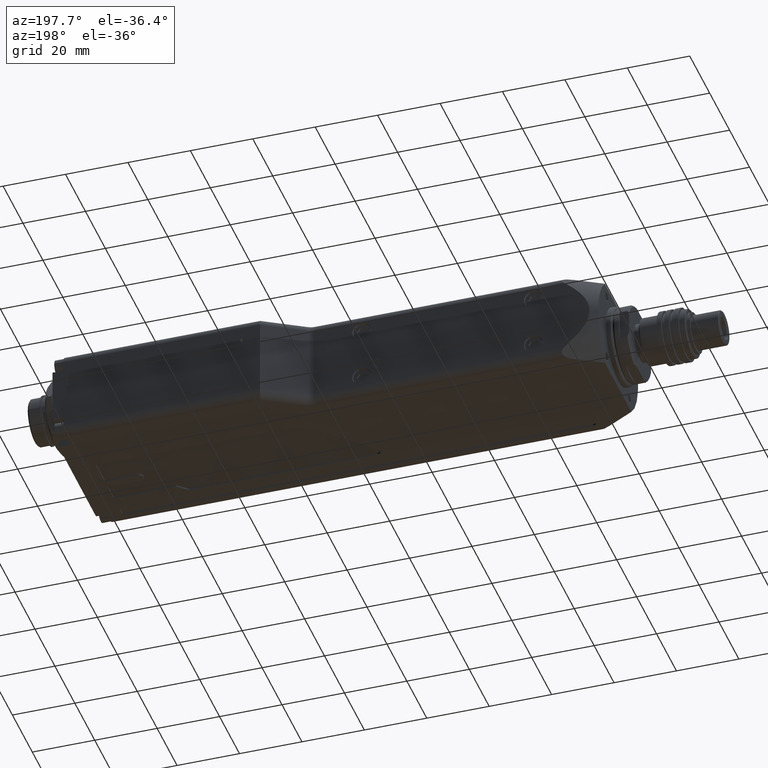
[diagram: clean part render]
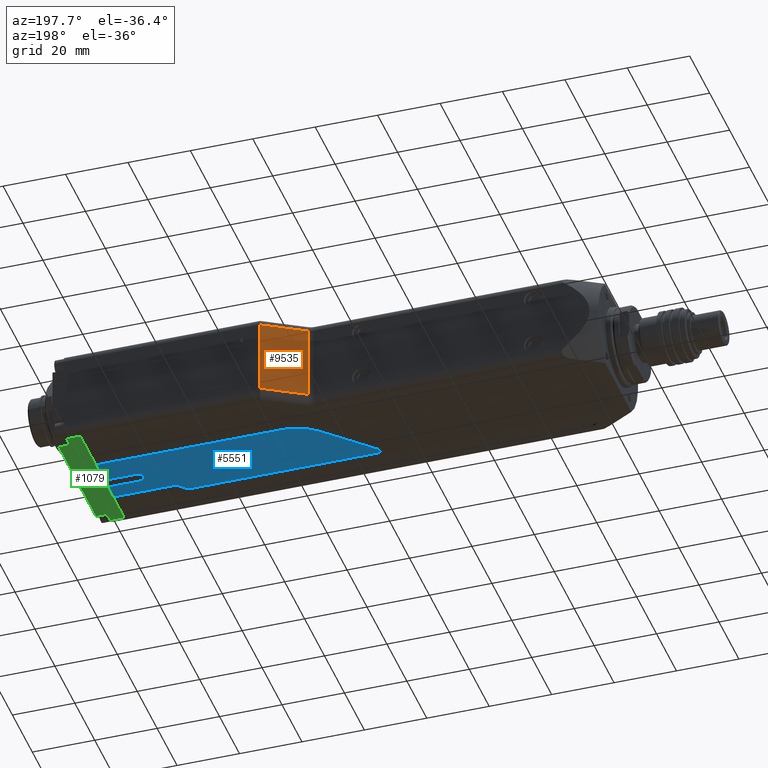
[diagram: same view with three faces highlighted in distinct colors, each labeled with its STEP entity id]
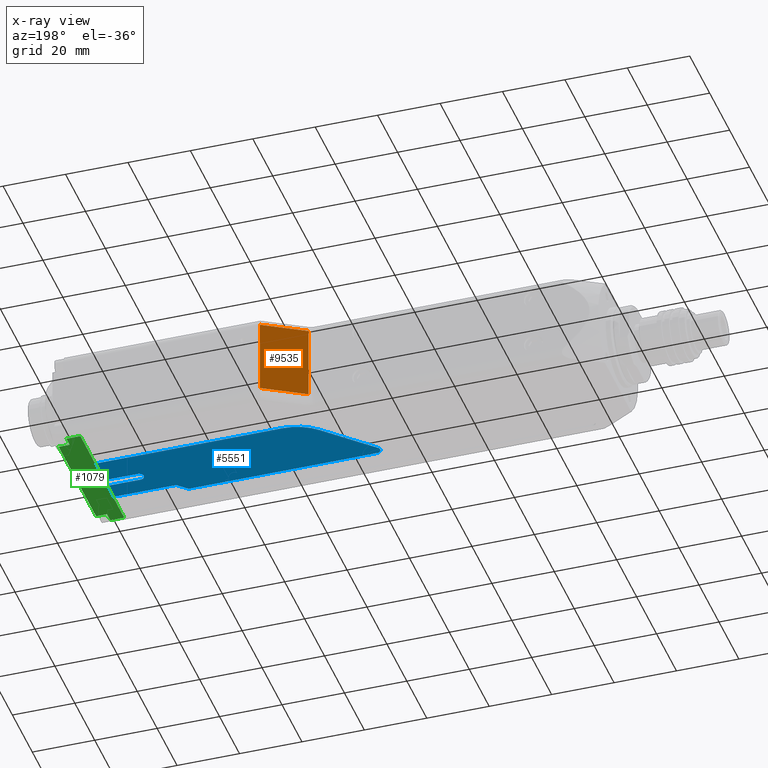
[diagram: x-ray of the same camera — body ghosted, the three highlighted faces saturated]
A machine part, auxiliary view with three faces highlighted in distinct colors.
The next image is the same camera in x-ray (body ghosted, the three faces saturated) — at least one of them is partly hidden behind the body in this view.
Their STEP definitions:

[orange] entity #9535 — the highlighted planar face has unit normal (0.5002, -0.8659, 0).
#108 = EDGE_CURVE ( 'NONE', #8480, #2898, #10623, .T. ) ;
#388 = ORIENTED_EDGE ( 'NONE', *, *, #108, .T. ) ;
#978 = DIRECTION ( 'NONE',  ( -0.0000000000000000000, -0.0000000000000000000, -1.000000000000000000 ) ) ;
#1025 = LINE ( 'NONE', #1843, #3693 ) ;
#1843 = CARTESIAN_POINT ( 'NONE',  ( 139.5000000000000000, 28.99999999999999600, 15.00000000000000000 ) ) ;
#2042 = ORIENTED_EDGE ( 'NONE', *, *, #10911, .T. ) ;
#2168 = CARTESIAN_POINT ( 'NONE',  ( 139.5000000000000000, 28.99999999999999600, -12.00000000000000000 ) ) ;
#2569 = CARTESIAN_POINT ( 'NONE',  ( 126.3463507289184000, 21.40222424775068800, 12.00000000000000000 ) ) ;
#2629 = EDGE_CURVE ( 'NONE', #2898, #10727, #1025, .T. ) ;
#2641 = VECTOR ( 'NONE', #9467, 1000.000000000000000 ) ;
#2898 = VERTEX_POINT ( 'NONE', #6598 ) ;
#3044 = DIRECTION ( 'NONE',  ( 0.8659252507497711100, 0.5001734300359685900, 0.0000000000000000000 ) ) ;
#3467 = ORIENTED_EDGE ( 'NONE', *, *, #11381, .T. ) ;
#3549 = CARTESIAN_POINT ( 'NONE',  ( 126.3463507289184000, 21.40222424775068800, -12.00000000000000000 ) ) ;
#3693 = VECTOR ( 'NONE', #978, 1000.000000000000000 ) ;
#3743 = PLANE ( 'NONE',  #4086 ) ;
#4086 = AXIS2_PLACEMENT_3D ( 'NONE', #8446, #11301, #3044 ) ;
#4527 = VECTOR ( 'NONE', #6015, 999.9999999999998900 ) ;
#5128 = CARTESIAN_POINT ( 'NONE',  ( 139.4999999999999700, 28.99999999999998200, 12.00000000000000000 ) ) ;
#6015 = DIRECTION ( 'NONE',  ( 0.8659252507497711100, 0.5001734300359685900, -0.0000000000000000000 ) ) ;
#6574 = EDGE_LOOP ( 'NONE', ( #2042, #388, #7360, #3467 ) ) ;
#6598 = CARTESIAN_POINT ( 'NONE',  ( 139.5000000000000000, 28.99999999999999600, 12.00000000000000000 ) ) ;
#7360 = ORIENTED_EDGE ( 'NONE', *, *, #2629, .T. ) ;
#7702 = LINE ( 'NONE', #11322, #2641 ) ;
#8446 = CARTESIAN_POINT ( 'NONE',  ( 125.6500000000000100, 21.00000000000000000, 15.00000000000000000 ) ) ;
#8480 = VERTEX_POINT ( 'NONE', #2569 ) ;
#8826 = FACE_OUTER_BOUND ( 'NONE', #6574, .T. ) ;
#9467 = DIRECTION ( 'NONE',  ( -0.0000000000000000000, -0.0000000000000000000, 1.000000000000000000 ) ) ;
#9535 = ADVANCED_FACE ( 'NONE', ( #8826 ), #3743, .F. ) ;
#9683 = LINE ( 'NONE', #11353, #11523 ) ;
#10623 = LINE ( 'NONE', #5128, #4527 ) ;
#10727 = VERTEX_POINT ( 'NONE', #2168 ) ;
#10911 = EDGE_CURVE ( 'NONE', #11501, #8480, #7702, .T. ) ;
#11301 = DIRECTION ( 'NONE',  ( 0.5001734300359685900, -0.8659252507497711100, 0.0000000000000000000 ) ) ;
#11314 = DIRECTION ( 'NONE',  ( -0.8659252507497711100, -0.5001734300359685900, 0.0000000000000000000 ) ) ;
#11322 = CARTESIAN_POINT ( 'NONE',  ( 126.3463507289184000, 21.40222424775068800, 15.00000000000000000 ) ) ;
#11353 = CARTESIAN_POINT ( 'NONE',  ( 125.6500000000000100, 21.00000000000000000, -12.00000000000000000 ) ) ;
#11381 = EDGE_CURVE ( 'NONE', #10727, #11501, #9683, .T. ) ;
#11501 = VERTEX_POINT ( 'NONE', #3549 ) ;
#11523 = VECTOR ( 'NONE', #11314, 999.9999999999998900 ) ;

[blue] entity #5551 — the highlighted planar face has unit normal (0, 0, -1).
#107 = LINE ( 'NONE', #9520, #3065 ) ;
#168 = EDGE_CURVE ( 'NONE', #10328, #1447, #11203, .T. ) ;
#233 = EDGE_CURVE ( 'NONE', #9568, #11001, #1445, .T. ) ;
#288 = ORIENTED_EDGE ( 'NONE', *, *, #9525, .F. ) ;
#334 = VECTOR ( 'NONE', #10073, 1000.000000000000100 ) ;
#502 = CARTESIAN_POINT ( 'NONE',  ( -1.218609813438058500E-015, 10.49999999999997700, -14.49999999999999800 ) ) ;
#814 = VERTEX_POINT ( 'NONE', #8796 ) ;
#904 = DIRECTION ( 'NONE',  ( 0.0000000000000000000, 0.0000000000000000000, -1.000000000000000000 ) ) ;
#924 = CARTESIAN_POINT ( 'NONE',  ( 198.0000000000000000, -7.500000000000003600, -14.49999999999999800 ) ) ;
#943 = CIRCLE ( 'NONE', #5840, 14.99999999999998600 ) ;
#992 = VECTOR ( 'NONE', #8426, 1000.000000000000000 ) ;
#1022 = LINE ( 'NONE', #4999, #2009 ) ;
#1236 = EDGE_CURVE ( 'NONE', #5699, #10328, #9542, .T. ) ;
#1287 = CARTESIAN_POINT ( 'NONE',  ( 187.5000000000000000, -1.734723475976807100E-015, -14.49999999999999800 ) ) ;
#1445 = LINE ( 'NONE', #9071, #6925 ) ;
#1447 = VERTEX_POINT ( 'NONE', #2682 ) ;
#1513 = CARTESIAN_POINT ( 'NONE',  ( 175.4393398282202000, -10.06066017177982600, -14.49999999999999800 ) ) ;
#1537 = CARTESIAN_POINT ( 'NONE',  ( 198.0000000000000000, 10.49999999999999500, -14.49999999999999800 ) ) ;
#1811 = EDGE_CURVE ( 'NONE', #5750, #9944, #2175, .T. ) ;
#1818 = PLANE ( 'NONE',  #10610 ) ;
#1868 = CARTESIAN_POINT ( 'NONE',  ( 60.74933982821967500, -60.74933982822023600, -14.49999999999999800 ) ) ;
#1912 = CIRCLE ( 'NONE', #2447, 1.500000000000001300 ) ;
#2009 = VECTOR ( 'NONE', #8307, 1000.000000000000000 ) ;
#2171 = CARTESIAN_POINT ( 'NONE',  ( 114.6200000000000200, -9.000000000000003600, -14.49999999999999800 ) ) ;
#2175 = LINE ( 'NONE', #1868, #334 ) ;
#2191 = EDGE_CURVE ( 'NONE', #11001, #2357, #10215, .T. ) ;
#2357 = VERTEX_POINT ( 'NONE', #1513 ) ;
#2372 = VECTOR ( 'NONE', #5967, 1000.000000000000000 ) ;
#2442 = CARTESIAN_POINT ( 'NONE',  ( 127.6052813742387700, 6.106601717798247900, -14.49999999999999800 ) ) ;
#2447 = AXIS2_PLACEMENT_3D ( 'NONE', #1287, #4850, #9372 ) ;
#2524 = LINE ( 'NONE', #502, #2372 ) ;
#2576 = ORIENTED_EDGE ( 'NONE', *, *, #6987, .F. ) ;
#2682 = CARTESIAN_POINT ( 'NONE',  ( 187.5000000000000000, -1.500000000000002700, -14.49999999999999800 ) ) ;
#2875 = CIRCLE ( 'NONE', #10525, 1.500000000000001300 ) ;
#2909 = CIRCLE ( 'NONE', #8104, 1.500000000000001300 ) ;
#2921 = DIRECTION ( 'NONE',  ( -0.0000000000000000000, -0.0000000000000000000, 1.000000000000000000 ) ) ;
#3034 = CIRCLE ( 'NONE', #7192, 1.500000000000001300 ) ;
#3040 = DIRECTION ( 'NONE',  ( 1.000000000000000000, 0.0000000000000000000, 0.0000000000000000000 ) ) ;
#3065 = VECTOR ( 'NONE', #10434, 1000.000000000000000 ) ;
#3067 = CARTESIAN_POINT ( 'NONE',  ( 92.74999999999862200, -92.75000000000008500, -14.49999999999999800 ) ) ;
#3094 = VECTOR ( 'NONE', #7716, 1000.000000000000000 ) ;
#3132 = VECTOR ( 'NONE', #9945, 1000.000000000000000 ) ;
#3160 = CARTESIAN_POINT ( 'NONE',  ( 3.097720492815728900E-017, 1.500000000000002000, -14.49999999999999800 ) ) ;
#3653 = DIRECTION ( 'NONE',  ( 1.000000000000000000, 0.0000000000000000000, 0.0000000000000000000 ) ) ;
#3663 = LINE ( 'NONE', #3067, #992 ) ;
#3749 = ORIENTED_EDGE ( 'NONE', *, *, #1811, .F. ) ;
#3810 = DIRECTION ( 'NONE',  ( 1.000000000000000000, 0.0000000000000000000, 0.0000000000000000000 ) ) ;
#4140 = EDGE_CURVE ( 'NONE', #2357, #814, #3663, .T. ) ;
#4241 = ORIENTED_EDGE ( 'NONE', *, *, #1236, .F. ) ;
#4524 = ORIENTED_EDGE ( 'NONE', *, *, #2191, .F. ) ;
#4850 = DIRECTION ( 'NONE',  ( 0.0000000000000000000, 0.0000000000000000000, -1.000000000000000000 ) ) ;
#4999 = CARTESIAN_POINT ( 'NONE',  ( 0.0000000000000000000, -7.500000000000003600, -14.49999999999999800 ) ) ;
#5004 = VECTOR ( 'NONE', #7913, 1000.000000000000000 ) ;
#5310 = CARTESIAN_POINT ( 'NONE',  ( 198.0000000000000000, 0.0000000000000000000, -14.49999999999999800 ) ) ;
#5326 = ORIENTED_EDGE ( 'NONE', *, *, #6688, .F. ) ;
#5405 = ORIENTED_EDGE ( 'NONE', *, *, #9049, .F. ) ;
#5428 = DIRECTION ( 'NONE',  ( 1.000000000000000000, 0.0000000000000000000, 0.0000000000000000000 ) ) ;
#5498 = CARTESIAN_POINT ( 'NONE',  ( 187.5000000000000000, -1.734723475976807100E-015, -14.49999999999999800 ) ) ;
#5551 = ADVANCED_FACE ( 'NONE', ( #8586 ), #1818, .T. ) ;
#5598 = CARTESIAN_POINT ( 'NONE',  ( 114.6200000000000200, -9.000000000000003600, -14.49999999999999800 ) ) ;
#5699 = VERTEX_POINT ( 'NONE', #924 ) ;
#5750 = VERTEX_POINT ( 'NONE', #2442 ) ;
#5809 = EDGE_CURVE ( 'NONE', #8291, #7302, #2524, .T. ) ;
#5840 = AXIS2_PLACEMENT_3D ( 'NONE', #9280, #10189, #3040 ) ;
#5876 = CARTESIAN_POINT ( 'NONE',  ( 138.2118830920369100, 10.49999999999999100, -14.49999999999999800 ) ) ;
#5967 = DIRECTION ( 'NONE',  ( -1.000000000000000000, -1.160580774702915600E-016, -0.0000000000000000000 ) ) ;
#6201 = ORIENTED_EDGE ( 'NONE', *, *, #4140, .F. ) ;
#6322 = DIRECTION ( 'NONE',  ( 1.000000000000000000, 0.0000000000000000000, 0.0000000000000000000 ) ) ;
#6688 = EDGE_CURVE ( 'NONE', #7302, #5750, #943, .T. ) ;
#6709 = CARTESIAN_POINT ( 'NONE',  ( 186.0000000000000000, -1.734723475976807100E-015, -14.49999999999999800 ) ) ;
#6730 = ORIENTED_EDGE ( 'NONE', *, *, #168, .F. ) ;
#6837 = EDGE_CURVE ( 'NONE', #8052, #9702, #7689, .T. ) ;
#6925 = VECTOR ( 'NONE', #3653, 1000.000000000000000 ) ;
#6987 = EDGE_CURVE ( 'NONE', #9944, #11149, #3034, .T. ) ;
#7192 = AXIS2_PLACEMENT_3D ( 'NONE', #2171, #8469, #9471 ) ;
#7302 = VERTEX_POINT ( 'NONE', #5876 ) ;
#7370 = EDGE_LOOP ( 'NONE', ( #9710, #9642, #2576, #3749, #5326, #10761, #7747, #9788, #288, #5405, #6730, #4241, #9150, #6201, #4524 ) ) ;
#7607 = CARTESIAN_POINT ( 'NONE',  ( 114.6200000000000200, -10.50000000000000200, -14.49999999999999800 ) ) ;
#7689 = LINE ( 'NONE', #3160, #3094 ) ;
#7716 = DIRECTION ( 'NONE',  ( 1.000000000000000000, -2.065146995210482800E-017, 0.0000000000000000000 ) ) ;
#7747 = ORIENTED_EDGE ( 'NONE', *, *, #10380, .F. ) ;
#7793 = EDGE_CURVE ( 'NONE', #11149, #9568, #2875, .T. ) ;
#7913 = DIRECTION ( 'NONE',  ( 0.0000000000000000000, 1.000000000000000000, 0.0000000000000000000 ) ) ;
#8052 = VERTEX_POINT ( 'NONE', #9432 ) ;
#8104 = AXIS2_PLACEMENT_3D ( 'NONE', #5498, #904, #6322 ) ;
#8125 = CARTESIAN_POINT ( 'NONE',  ( 0.0000000000000000000, 0.0000000000000000000, -14.49999999999999800 ) ) ;
#8198 = VERTEX_POINT ( 'NONE', #6709 ) ;
#8291 = VERTEX_POINT ( 'NONE', #1537 ) ;
#8307 = DIRECTION ( 'NONE',  ( 1.000000000000000000, 0.0000000000000000000, 0.0000000000000000000 ) ) ;
#8426 = DIRECTION ( 'NONE',  ( 0.7071067811865531200, 0.7071067811865420200, 0.0000000000000000000 ) ) ;
#8435 = DIRECTION ( 'NONE',  ( -0.0000000000000000000, -0.0000000000000000000, 1.000000000000000000 ) ) ;
#8469 = DIRECTION ( 'NONE',  ( -0.0000000000000000000, -0.0000000000000000000, 1.000000000000000000 ) ) ;
#8509 = AXIS2_PLACEMENT_3D ( 'NONE', #10984, #8435, #10273 ) ;
#8586 = FACE_OUTER_BOUND ( 'NONE', #7370, .T. ) ;
#8699 = EDGE_CURVE ( 'NONE', #814, #5699, #1022, .T. ) ;
#8796 = CARTESIAN_POINT ( 'NONE',  ( 178.0000000000000300, -7.500000000000020400, -14.49999999999999800 ) ) ;
#9049 = EDGE_CURVE ( 'NONE', #1447, #8198, #2909, .T. ) ;
#9071 = CARTESIAN_POINT ( 'NONE',  ( 0.0000000000000000000, -10.50000000000000200, -14.49999999999999800 ) ) ;
#9150 = ORIENTED_EDGE ( 'NONE', *, *, #8699, .F. ) ;
#9280 = CARTESIAN_POINT ( 'NONE',  ( 138.2118830920369100, -4.500000000000007100, -14.49999999999999800 ) ) ;
#9372 = DIRECTION ( 'NONE',  ( 1.000000000000000000, 0.0000000000000000000, 0.0000000000000000000 ) ) ;
#9432 = CARTESIAN_POINT ( 'NONE',  ( 187.5000000000000000, 1.499999999999998000, -14.49999999999999800 ) ) ;
#9445 = CARTESIAN_POINT ( 'NONE',  ( 198.0000000000000000, -1.500000000000002000, -14.49999999999999800 ) ) ;
#9471 = DIRECTION ( 'NONE',  ( 1.000000000000000000, 0.0000000000000000000, 0.0000000000000000000 ) ) ;
#9520 = CARTESIAN_POINT ( 'NONE',  ( 198.0000000000000000, 0.0000000000000000000, -14.49999999999999800 ) ) ;
#9525 = EDGE_CURVE ( 'NONE', #8198, #8052, #1912, .T. ) ;
#9542 = LINE ( 'NONE', #5310, #5004 ) ;
#9568 = VERTEX_POINT ( 'NONE', #7607 ) ;
#9642 = ORIENTED_EDGE ( 'NONE', *, *, #7793, .F. ) ;
#9702 = VERTEX_POINT ( 'NONE', #10589 ) ;
#9710 = ORIENTED_EDGE ( 'NONE', *, *, #233, .F. ) ;
#9788 = ORIENTED_EDGE ( 'NONE', *, *, #6837, .F. ) ;
#9904 = CARTESIAN_POINT ( 'NONE',  ( 1.858632295689466400E-016, -1.500000000000025800, -14.49999999999999800 ) ) ;
#9944 = VERTEX_POINT ( 'NONE', #10160 ) ;
#9945 = DIRECTION ( 'NONE',  ( -1.000000000000000000, -1.239088197126289600E-016, -0.0000000000000000000 ) ) ;
#9947 = DIRECTION ( 'NONE',  ( 0.0000000000000000000, 0.0000000000000000000, -1.000000000000000000 ) ) ;
#10073 = DIRECTION ( 'NONE',  ( -0.7071067811865507900, -0.7071067811865442400, -0.0000000000000000000 ) ) ;
#10160 = CARTESIAN_POINT ( 'NONE',  ( 113.5593398282202200, -7.939339828220176400, -14.49999999999999800 ) ) ;
#10189 = DIRECTION ( 'NONE',  ( -0.0000000000000000000, -0.0000000000000000000, 1.000000000000000000 ) ) ;
#10215 = CIRCLE ( 'NONE', #8509, 1.500000000000001300 ) ;
#10273 = DIRECTION ( 'NONE',  ( 1.000000000000000000, 0.0000000000000000000, 0.0000000000000000000 ) ) ;
#10328 = VERTEX_POINT ( 'NONE', #9445 ) ;
#10380 = EDGE_CURVE ( 'NONE', #9702, #8291, #107, .T. ) ;
#10434 = DIRECTION ( 'NONE',  ( 0.0000000000000000000, 1.000000000000000000, 0.0000000000000000000 ) ) ;
#10525 = AXIS2_PLACEMENT_3D ( 'NONE', #5598, #2921, #3810 ) ;
#10589 = CARTESIAN_POINT ( 'NONE',  ( 198.0000000000000000, 1.499999999999997800, -14.49999999999999800 ) ) ;
#10610 = AXIS2_PLACEMENT_3D ( 'NONE', #8125, #9947, #5428 ) ;
#10761 = ORIENTED_EDGE ( 'NONE', *, *, #5809, .F. ) ;
#10984 = CARTESIAN_POINT ( 'NONE',  ( 174.3786796564403700, -9.000000000000003600, -14.49999999999999800 ) ) ;
#11001 = VERTEX_POINT ( 'NONE', #11475 ) ;
#11029 = CARTESIAN_POINT ( 'NONE',  ( 113.1200000000000200, -9.000000000000003600, -14.49999999999999800 ) ) ;
#11149 = VERTEX_POINT ( 'NONE', #11029 ) ;
#11203 = LINE ( 'NONE', #9904, #3132 ) ;
#11475 = CARTESIAN_POINT ( 'NONE',  ( 174.3786796564403700, -10.50000000000000200, -14.49999999999999800 ) ) ;

[green] entity #1079 — the highlighted planar face has unit normal (0, 0, 1).
#356 = EDGE_CURVE ( 'NONE', #9095, #11228, #1590, .T. ) ;
#481 = VERTEX_POINT ( 'NONE', #2973 ) ;
#673 = EDGE_CURVE ( 'NONE', #3895, #6470, #7830, .T. ) ;
#772 = CARTESIAN_POINT ( 'NONE',  ( 202.5000000000000000, -14.75000000000000000, -15.00000000000000000 ) ) ;
#1079 = ADVANCED_FACE ( 'NONE', ( #8822 ), #3971, .F. ) ;
#1316 = DIRECTION ( 'NONE',  ( 1.000000000000000000, 0.0000000000000000000, -0.0000000000000000000 ) ) ;
#1590 = LINE ( 'NONE', #7254, #8907 ) ;
#1647 = VECTOR ( 'NONE', #5703, 1000.000000000000000 ) ;
#1738 = VERTEX_POINT ( 'NONE', #9798 ) ;
#2164 = LINE ( 'NONE', #2783, #2867 ) ;
#2218 = CARTESIAN_POINT ( 'NONE',  ( 206.0000000000000300, -18.00000000000000400, -15.00000000000000000 ) ) ;
#2369 = ORIENTED_EDGE ( 'NONE', *, *, #673, .T. ) ;
#2488 = EDGE_CURVE ( 'NONE', #7771, #6470, #9916, .T. ) ;
#2783 = CARTESIAN_POINT ( 'NONE',  ( 202.5000000000000000, 22.75000000000000000, -15.00000000000000000 ) ) ;
#2867 = VECTOR ( 'NONE', #10839, 1000.000000000000000 ) ;
#2973 = CARTESIAN_POINT ( 'NONE',  ( 202.5000000000000000, 26.00000000000000000, -15.00000000000000000 ) ) ;
#3361 = AXIS2_PLACEMENT_3D ( 'NONE', #8392, #6577, #1316 ) ;
#3397 = CARTESIAN_POINT ( 'NONE',  ( 206.0000000000000300, 22.75000000000000000, -15.00000000000000000 ) ) ;
#3691 = VECTOR ( 'NONE', #11449, 1000.000000000000000 ) ;
#3774 = CARTESIAN_POINT ( 'NONE',  ( 206.0000000000000300, -14.75000000000000400, -15.00000000000000000 ) ) ;
#3895 = VERTEX_POINT ( 'NONE', #10090 ) ;
#3971 = PLANE ( 'NONE',  #3361 ) ;
#3976 = LINE ( 'NONE', #7714, #3691 ) ;
#4658 = ORIENTED_EDGE ( 'NONE', *, *, #2488, .F. ) ;
#4969 = VECTOR ( 'NONE', #10649, 1000.000000000000000 ) ;
#5522 = DIRECTION ( 'NONE',  ( 0.0000000000000000000, 1.000000000000000000, 0.0000000000000000000 ) ) ;
#5703 = DIRECTION ( 'NONE',  ( -0.0000000000000000000, 1.000000000000000000, -0.0000000000000000000 ) ) ;
#6065 = LINE ( 'NONE', #2218, #7878 ) ;
#6470 = VERTEX_POINT ( 'NONE', #3397 ) ;
#6512 = CARTESIAN_POINT ( 'NONE',  ( 198.0000000000000000, 26.00000000000000000, -15.00000000000000000 ) ) ;
#6516 = ORIENTED_EDGE ( 'NONE', *, *, #6800, .T. ) ;
#6577 = DIRECTION ( 'NONE',  ( 0.0000000000000000000, 0.0000000000000000000, 1.000000000000000000 ) ) ;
#6706 = EDGE_LOOP ( 'NONE', ( #4658, #6903, #10988, #6516, #10739, #7093, #10710, #2369 ) ) ;
#6800 = EDGE_CURVE ( 'NONE', #1738, #9095, #6065, .T. ) ;
#6903 = ORIENTED_EDGE ( 'NONE', *, *, #11147, .F. ) ;
#7093 = ORIENTED_EDGE ( 'NONE', *, *, #8786, .F. ) ;
#7254 = CARTESIAN_POINT ( 'NONE',  ( 198.0000000000000000, -18.00000000000000400, -15.00000000000000000 ) ) ;
#7714 = CARTESIAN_POINT ( 'NONE',  ( 206.0000000000000300, 26.00000000000000000, -15.00000000000000000 ) ) ;
#7771 = VERTEX_POINT ( 'NONE', #3774 ) ;
#7830 = LINE ( 'NONE', #8720, #10536 ) ;
#7878 = VECTOR ( 'NONE', #11299, 1000.000000000000000 ) ;
#8229 = CARTESIAN_POINT ( 'NONE',  ( 198.0000000000000000, -18.00000000000000400, -15.00000000000000000 ) ) ;
#8329 = EDGE_CURVE ( 'NONE', #3895, #481, #2164, .T. ) ;
#8392 = CARTESIAN_POINT ( 'NONE',  ( 206.0000000000000300, -18.00000000000000400, -15.00000000000000000 ) ) ;
#8554 = LINE ( 'NONE', #9302, #1647 ) ;
#8720 = CARTESIAN_POINT ( 'NONE',  ( 202.5000000000000000, 22.75000000000000000, -15.00000000000000000 ) ) ;
#8750 = VERTEX_POINT ( 'NONE', #9229 ) ;
#8775 = DIRECTION ( 'NONE',  ( 1.000000000000000000, -0.0000000000000000000, -0.0000000000000000000 ) ) ;
#8786 = EDGE_CURVE ( 'NONE', #481, #11228, #3976, .T. ) ;
#8822 = FACE_OUTER_BOUND ( 'NONE', #6706, .T. ) ;
#8876 = DIRECTION ( 'NONE',  ( 1.000000000000000000, -0.0000000000000000000, -0.0000000000000000000 ) ) ;
#8907 = VECTOR ( 'NONE', #5522, 1000.000000000000000 ) ;
#9095 = VERTEX_POINT ( 'NONE', #8229 ) ;
#9158 = EDGE_CURVE ( 'NONE', #1738, #8750, #8554, .T. ) ;
#9229 = CARTESIAN_POINT ( 'NONE',  ( 202.5000000000000000, -14.75000000000000000, -15.00000000000000000 ) ) ;
#9264 = LINE ( 'NONE', #772, #10109 ) ;
#9302 = CARTESIAN_POINT ( 'NONE',  ( 202.5000000000000000, -14.75000000000000000, -15.00000000000000000 ) ) ;
#9798 = CARTESIAN_POINT ( 'NONE',  ( 202.5000000000000000, -18.00000000000000000, -15.00000000000000000 ) ) ;
#9916 = LINE ( 'NONE', #11638, #4969 ) ;
#10090 = CARTESIAN_POINT ( 'NONE',  ( 202.5000000000000000, 22.75000000000000000, -15.00000000000000000 ) ) ;
#10109 = VECTOR ( 'NONE', #8775, 1000.000000000000000 ) ;
#10536 = VECTOR ( 'NONE', #8876, 1000.000000000000000 ) ;
#10649 = DIRECTION ( 'NONE',  ( 0.0000000000000000000, 1.000000000000000000, 0.0000000000000000000 ) ) ;
#10710 = ORIENTED_EDGE ( 'NONE', *, *, #8329, .F. ) ;
#10739 = ORIENTED_EDGE ( 'NONE', *, *, #356, .T. ) ;
#10839 = DIRECTION ( 'NONE',  ( 0.0000000000000000000, 1.000000000000000000, 0.0000000000000000000 ) ) ;
#10988 = ORIENTED_EDGE ( 'NONE', *, *, #9158, .F. ) ;
#11147 = EDGE_CURVE ( 'NONE', #8750, #7771, #9264, .T. ) ;
#11228 = VERTEX_POINT ( 'NONE', #6512 ) ;
#11299 = DIRECTION ( 'NONE',  ( -1.000000000000000000, -0.0000000000000000000, -0.0000000000000000000 ) ) ;
#11449 = DIRECTION ( 'NONE',  ( -1.000000000000000000, -0.0000000000000000000, -0.0000000000000000000 ) ) ;
#11638 = CARTESIAN_POINT ( 'NONE',  ( 206.0000000000000300, -18.00000000000000400, -15.00000000000000000 ) ) ;